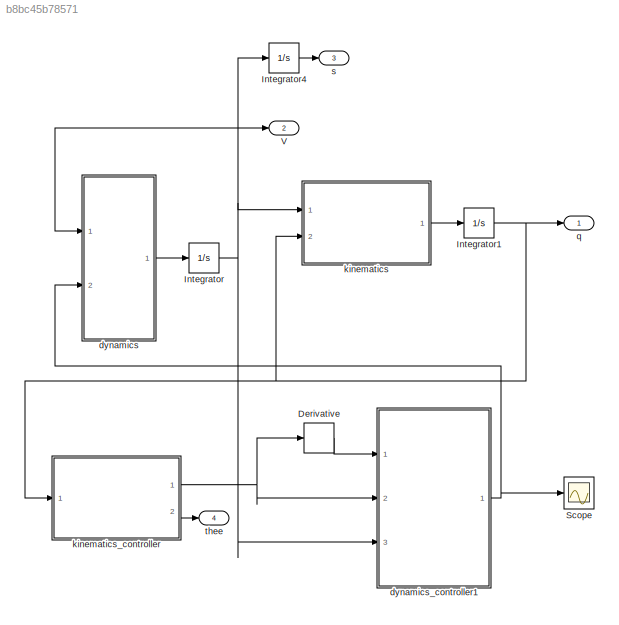
MODEL slx_b8bc45b78571
KIND model
CONFIG AbsTol = 1e-14
CONFIG EnableMultiTasking = off
CONFIG FixedStep = auto
CONFIG MaxStep = auto
CONFIG MinStep = auto
CONFIG RelTol = 1e-10
CONFIG SampleTimeConstraint = Unconstrained
CONFIG SolverName = VariableStepAuto
CONFIG StartTime = 0.0
CONFIG StopTime = 60
BLOCK [Derivative] Derivative
BLOCK [Integrator] Integrator
  InitialCondition = V0
  Ports = [1, 1]
BLOCK [Integrator] Integrator1
  InitialCondition = q0
  Ports = [1, 1]
BLOCK [Integrator] Integrator4
  InitialCondition = s0
  Ports = [1, 1]
BLOCK [Scope] Scope
  Floating = off
  NumInputPorts = 1
  Ports = [1]
  ScopeSpecificationString = Simulink.scopes.TimeScopeBlockCfg('CurrentConfiguration', extmgr.ConfigurationSet(extmgr.Configuration('Core','General UI',true),extmgr.Configuration('Core','Source UI',true),extmgr.Configuration('Sources','WiredSimulink',true),extmgr.Configuration('Visuals','Time Domain',true,'SerializedDisplays',{struct('MinYLimReal','-2.36367','MaxYLimReal','2.36367','YLabelReal','','MinYLimMag','0.00000','MaxY...<+1367ch>
BLOCK [Outport] V
  Port = 2
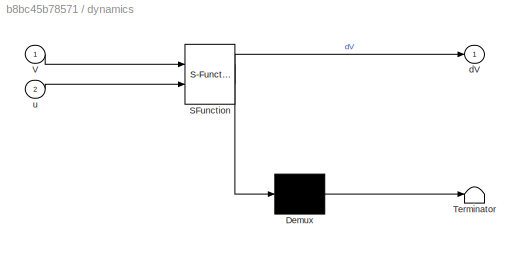
BLOCK [SubSystem] dynamics
  ErrorFcn = Stateflow.Translate.translate
  PermitHierarchicalResolution = ExplicitOnly
  Ports = [2, 1]
  RequestExecContextInheritance = off
  SFBlockType = MATLAB Function
  TreatAsAtomicUnit = on
BLOCK [Demux] dynamics/ Demux 
  Outputs = 1
  Ports = [1, 1]
BLOCK [S-Function] dynamics/ SFunction 
  EnableBusSupport = on
  FunctionName = sf_sfun
  PortCounts = [2 2]
  Ports = [2, 2]
  SFcnIsStateOwnerBlock = off
  SFunctionDeploymentMode = off
  Tag = Stateflow S-Function 1
BLOCK [Terminator] dynamics/ Terminator 
BLOCK [Inport] dynamics/V
BLOCK [Outport] dynamics/dV
BLOCK [Inport] dynamics/u
  Port = 2
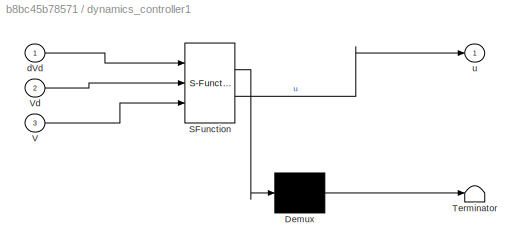
BLOCK [SubSystem] dynamics_controller1
  ErrorFcn = Stateflow.Translate.translate
  PermitHierarchicalResolution = ExplicitOnly
  Ports = [3, 1]
  RequestExecContextInheritance = off
  SFBlockType = MATLAB Function
  TreatAsAtomicUnit = on
BLOCK [Demux] dynamics_controller1/ Demux 
  Outputs = 1
  Ports = [1, 1]
BLOCK [S-Function] dynamics_controller1/ SFunction 
  EnableBusSupport = on
  FunctionName = sf_sfun
  PortCounts = [3 2]
  Ports = [3, 2]
  SFcnIsStateOwnerBlock = off
  SFunctionDeploymentMode = off
  Tag = Stateflow S-Function 4
BLOCK [Terminator] dynamics_controller1/ Terminator 
BLOCK [Inport] dynamics_controller1/V
  Port = 3
BLOCK [Inport] dynamics_controller1/Vd
  Port = 2
BLOCK [Inport] dynamics_controller1/dVd
BLOCK [Outport] dynamics_controller1/u
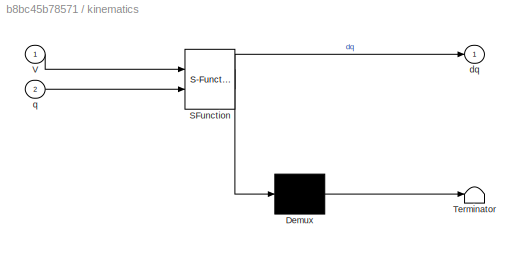
BLOCK [SubSystem] kinematics
  ErrorFcn = Stateflow.Translate.translate
  PermitHierarchicalResolution = ExplicitOnly
  Ports = [2, 1]
  RequestExecContextInheritance = off
  SFBlockType = MATLAB Function
  TreatAsAtomicUnit = on
BLOCK [Demux] kinematics/ Demux 
  Outputs = 1
  Ports = [1, 1]
BLOCK [S-Function] kinematics/ SFunction 
  EnableBusSupport = on
  FunctionName = sf_sfun
  PortCounts = [2 2]
  Ports = [2, 2]
  SFcnIsStateOwnerBlock = off
  SFunctionDeploymentMode = off
  Tag = Stateflow S-Function 2
BLOCK [Terminator] kinematics/ Terminator 
BLOCK [Inport] kinematics/V
BLOCK [Outport] kinematics/dq
BLOCK [Inport] kinematics/q
  Port = 2
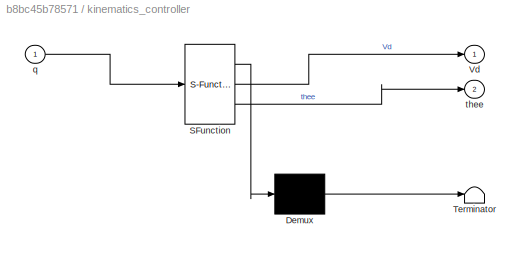
BLOCK [SubSystem] kinematics_controller
  ErrorFcn = Stateflow.Translate.translate
  PermitHierarchicalResolution = ExplicitOnly
  Ports = [1, 2]
  RequestExecContextInheritance = off
  SFBlockType = MATLAB Function
  TreatAsAtomicUnit = on
BLOCK [Demux] kinematics_controller/ Demux 
  Outputs = 1
  Ports = [1, 1]
BLOCK [S-Function] kinematics_controller/ SFunction 
  EnableBusSupport = on
  FunctionName = sf_sfun
  PortCounts = [1 3]
  Ports = [1, 3]
  SFcnIsStateOwnerBlock = off
  SFunctionDeploymentMode = off
  Tag = Stateflow S-Function 3
BLOCK [Terminator] kinematics_controller/ Terminator 
BLOCK [Outport] kinematics_controller/Vd
BLOCK [Inport] kinematics_controller/q
BLOCK [Outport] kinematics_controller/thee
  Port = 2
BLOCK [Outport] q
BLOCK [Outport] s
  Port = 3
BLOCK [Outport] thee
  Port = 4
LINE Derivative:1 -> dynamics_controller1:1
NET Integrator1:1 -> kinematics:2, kinematics_controller:1, q:1
LINE Integrator4:1 -> s:1
NET Integrator:1 -> Integrator4:1, V:1, dynamics:1, dynamics_controller1:3, kinematics:1
LINE dynamics:1 -> Integrator:1
NET dynamics_controller1:1 -> Scope:1, dynamics:2
LINE kinematics:1 -> Integrator1:1
NET kinematics_controller:1 -> Derivative:1, dynamics_controller1:2
LINE kinematics_controller:2 -> thee:1
note: NET lines group one-source signal fan-out (src -> all destinations, sorted); 1:1 wires keep LINE
CHART dynamics states=1 transitions=1
  STATE_LABEL 'eML_blk_kernel()'
  STATE_LABEL 'SCRIPT:\nfunction dV = fcn(V,u)\nm=3;\np=0.1;\nJ=1;\nd=0.05;\nr=0.05;\nL=0.1;\nal=m+p;\nbe=m*d^2+p*L^2+J;\nga=m*d;\nM=diag([al,be]);\ndV = M^-1*(ga*V(2)*[V(2);-V(1)]+[1 1;L -L]*u/r);\n\n'
CHART kinematics states=1 transitions=1
  STATE_LABEL 'eML_blk_kernel()'
  STATE_LABEL 'SCRIPT:\nfunction dq = fcn(V,q)\ndq=[ cos(q(3))  0\n     sin(q(3))  0\n      0         1]*V;\n\n\n\n'
CHART kinematics_controller states=1 transitions=1
  STATE_LABEL 'eML_blk_kernel()'
  STATE_LABEL 'SCRIPT:\nfunction [Vd,thee]= fcn(q)\n\nthe=atan2(sin(q(3)),cos(q(3)));\n\nk1=0.2;k2=0.375;\nvm=0.05;wm=0.78;\n\nal=atan2(-q(2),-q(1));    \nthee=atan2(sin(al-the),cos(al-the));\nd=sqrt(q(2)^2+q(1)^2);\nvp=k1*d;\nvd=vp*cos(thee*0.5)^2;\nv=min(vd,vm);\ndal=v*sin(thee)/d;\nwd=dal+2*k2*sin(thee*0.5);\nw=sign(wd)*min(abs(wd),wm);\nVd=[v;w];\n'
CHART dynamics_controller1 states=1 transitions=1
  STATE_LABEL 'eML_blk_kernel()'
  STATE_LABEL 'SCRIPT:\nfunction u= fcn(dVd,Vd,V)\nK=5;\nm=3;\np=0.1;\nJ=1;\nd=0.05;\nr=0.05;\nL=0.1;\nal=m+p;\nbe=m*d^2+p*L^2+J;\nga=m*d;\nM=diag([al,be]);\ndV=dVd-K*(V-Vd);\nC=[1 1;L -L]/r;\nu=C^-1*(M*dV-ga*V(2)*[V(2);-V(1)]);'
CHART  states=0 transitions=0
CHART  states=0 transitions=0
CHART  states=0 transitions=0
CHART  states=0 transitions=0
